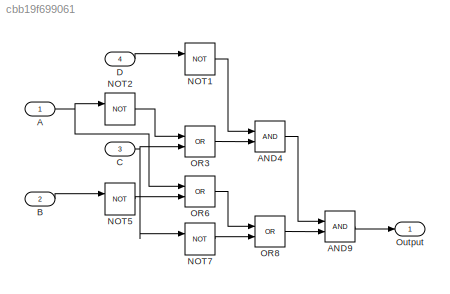
MODEL slx_cbb19f699061
KIND model
CONFIG AbsTol = auto
CONFIG EnableMultiTasking = off
CONFIG FixedStep = auto
CONFIG MaxStep = auto
CONFIG MinStep = auto
CONFIG RelTol = 1e-3
CONFIG SampleTimeConstraint = Unconstrained
CONFIG SolverName = VariableStepAuto
CONFIG StartTime = 0.0
CONFIG StopTime = 10.0
BLOCK [Inport] A
  OutDataTypeStr = boolean
BLOCK [Logic] AND4
  AllPortsSameDT = off
  OutDataTypeStr = boolean
BLOCK [Logic] AND9
  AllPortsSameDT = off
  OutDataTypeStr = boolean
BLOCK [Inport] B
  OutDataTypeStr = boolean
  Port = 2
BLOCK [Inport] C
  OutDataTypeStr = boolean
  Port = 3
BLOCK [Inport] D
  OutDataTypeStr = boolean
  Port = 4
BLOCK [Logic] NOT1
  AllPortsSameDT = off
  Operator = NOT
  OutDataTypeStr = boolean
BLOCK [Logic] NOT2
  AllPortsSameDT = off
  Operator = NOT
  OutDataTypeStr = boolean
BLOCK [Logic] NOT5
  AllPortsSameDT = off
  Operator = NOT
  OutDataTypeStr = boolean
BLOCK [Logic] NOT7
  AllPortsSameDT = off
  Operator = NOT
  OutDataTypeStr = boolean
BLOCK [Logic] OR3
  AllPortsSameDT = off
  Operator = OR
  OutDataTypeStr = boolean
BLOCK [Logic] OR6
  AllPortsSameDT = off
  Operator = OR
  OutDataTypeStr = boolean
BLOCK [Logic] OR8
  AllPortsSameDT = off
  Operator = OR
  OutDataTypeStr = boolean
BLOCK [Outport] Output
  OutDataTypeStr = boolean
NET A:1 -> NOT2:1, OR6:1
LINE AND4:1 -> AND9:1
LINE AND9:1 -> Output:1
LINE B:1 -> NOT5:1
NET C:1 -> NOT7:1, OR3:2
LINE D:1 -> NOT1:1
LINE NOT1:1 -> AND4:1
LINE NOT2:1 -> OR3:1
LINE NOT5:1 -> OR6:2
LINE NOT7:1 -> OR8:2
LINE OR3:1 -> AND4:2
LINE OR6:1 -> OR8:1
LINE OR8:1 -> AND9:2
note: NET lines group one-source signal fan-out (src -> all destinations, sorted); 1:1 wires keep LINE
